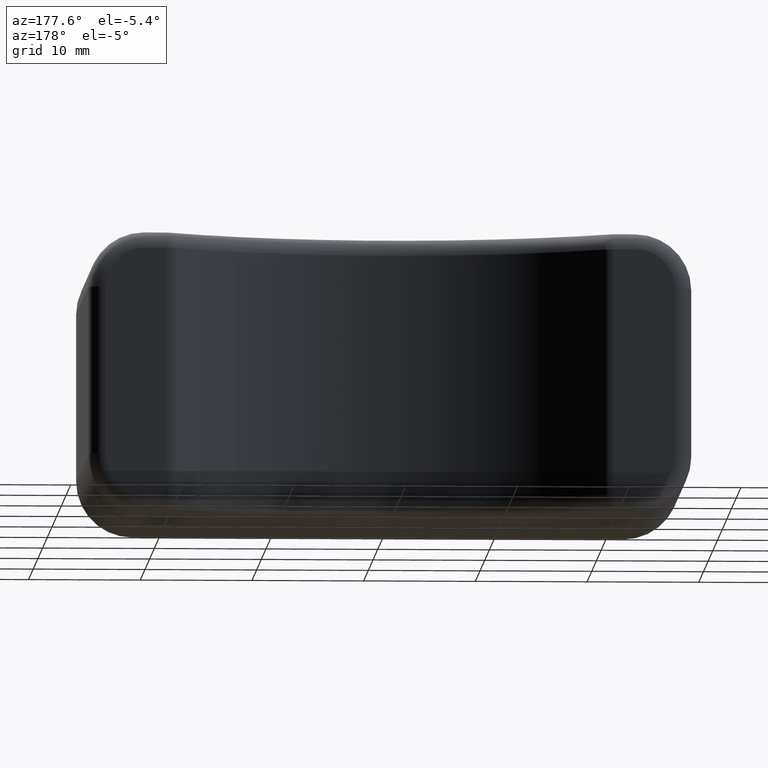
[diagram: clean part render]
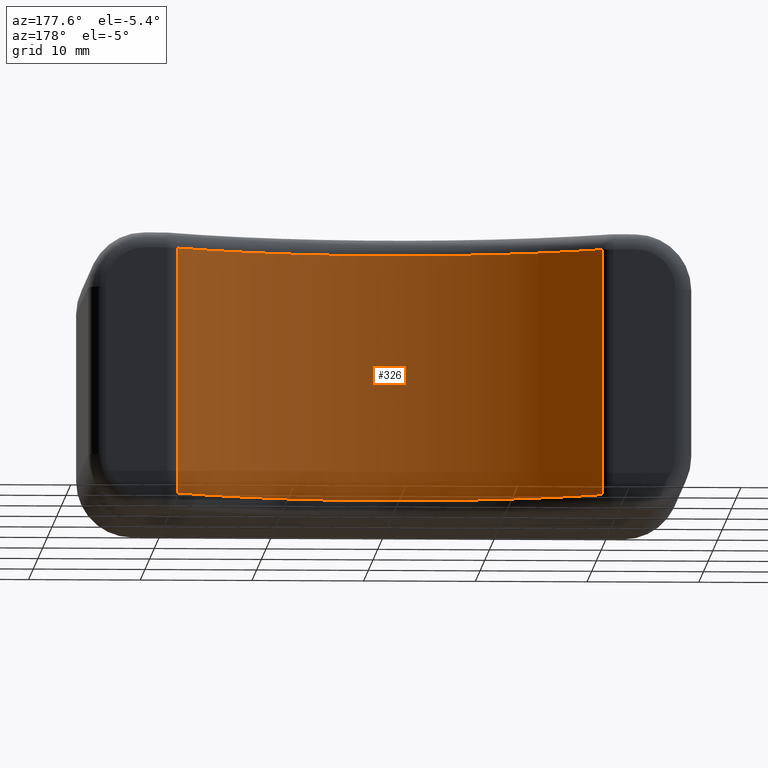
[diagram: same view with one face highlighted and labeled with its STEP entity id]
A machine part, auxiliary view. The second image highlights one B-rep face of the part: STEP entity #326.
In plain terms, the highlighted cylindrical surface (partial cylindrical patch) has radius 30.5 mm, axis along (0, 0, -1).
Its self-contained STEP definition (entity closure, byte-faithful):
#326 = ADVANCED_FACE( '', ( #950 ), #951, .F. );
#950 = FACE_OUTER_BOUND( '', #1650, .T. );
#951 = CYLINDRICAL_SURFACE( '', #1651, 30.5000000000000 );
#1650 = EDGE_LOOP( '', ( #3853, #3854, #3855, #3856 ) );
#1651 = AXIS2_PLACEMENT_3D( '', #3857, #3858, #3859 );
#3853 = ORIENTED_EDGE( '', *, *, #4729, .T. );
#3854 = ORIENTED_EDGE( '', *, *, #4737, .T. );
#3855 = ORIENTED_EDGE( '', *, *, #5197, .T. );
#3856 = ORIENTED_EDGE( '', *, *, #5198, .T. );
#3857 = CARTESIAN_POINT( '', ( 0.000000000000000, 50.5000000000000, -12.5000000000000 ) );
#3858 = DIRECTION( '', ( 0.000000000000000, 0.000000000000000, -1.00000000000000 ) );
#3859 = DIRECTION( '', ( 0.000000000000000, -1.00000000000000, 0.000000000000000 ) );
#4729 = EDGE_CURVE( '', #5827, #5829, #5831, .T. );
#4737 = EDGE_CURVE( '', #5829, #5840, #5842, .T. );
#5197 = EDGE_CURVE( '', #5840, #6540, #6541, .F. );
#5198 = EDGE_CURVE( '', #6540, #5827, #6542, .F. );
#5827 = VERTEX_POINT( '', #7468 );
#5829 = VERTEX_POINT( '', #7470 );
#5831 = CIRCLE( '', #7472, 30.5000000000000 );
#5840 = VERTEX_POINT( '', #7482 );
#5842 = LINE( '', #7484, #7485 );
#6540 = VERTEX_POINT( '', #8530 );
#6541 = CIRCLE( '', #8531, 30.5000000000000 );
#6542 = LINE( '', #8532, #8533 );
#7468 = CARTESIAN_POINT( '', ( 19.0386569637770, 26.6718750000000, -11.0000000000000 ) );
#7470 = CARTESIAN_POINT( '', ( -19.0386569637770, 26.6718750000000, -11.0000000000000 ) );
#7472 = AXIS2_PLACEMENT_3D( '', #8999, #9000, #9001 );
#7482 = CARTESIAN_POINT( '', ( -19.0386569637770, 26.6718750000000, 11.0000000000000 ) );
#7484 = CARTESIAN_POINT( '', ( -19.0386569637770, 26.6718750000000, -12.5000000000000 ) );
#7485 = VECTOR( '', #9021, 1000.00000000000 );
#8530 = CARTESIAN_POINT( '', ( 19.0386569637770, 26.6718750000000, 11.0000000000000 ) );
#8531 = AXIS2_PLACEMENT_3D( '', #9705, #9706, #9707 );
#8532 = CARTESIAN_POINT( '', ( 19.0386569637770, 26.6718750000000, -12.5000000000000 ) );
#8533 = VECTOR( '', #9708, 1000.00000000000 );
#8999 = CARTESIAN_POINT( '', ( 0.000000000000000, 50.5000000000000, -11.0000000000000 ) );
#9000 = DIRECTION( '', ( 0.000000000000000, 0.000000000000000, -1.00000000000000 ) );
#9001 = DIRECTION( '', ( -1.00000000000000, 0.000000000000000, 0.000000000000000 ) );
#9021 = DIRECTION( '', ( 0.000000000000000, 0.000000000000000, 1.00000000000000 ) );
#9705 = CARTESIAN_POINT( '', ( 0.000000000000000, 50.5000000000000, 11.0000000000000 ) );
#9706 = DIRECTION( '', ( 0.000000000000000, 0.000000000000000, -1.00000000000000 ) );
#9707 = DIRECTION( '', ( -1.00000000000000, 0.000000000000000, 0.000000000000000 ) );
#9708 = DIRECTION( '', ( 0.000000000000000, 0.000000000000000, 1.00000000000000 ) );